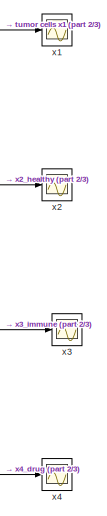
[diagram: root canvas - part 1/3, top right region]
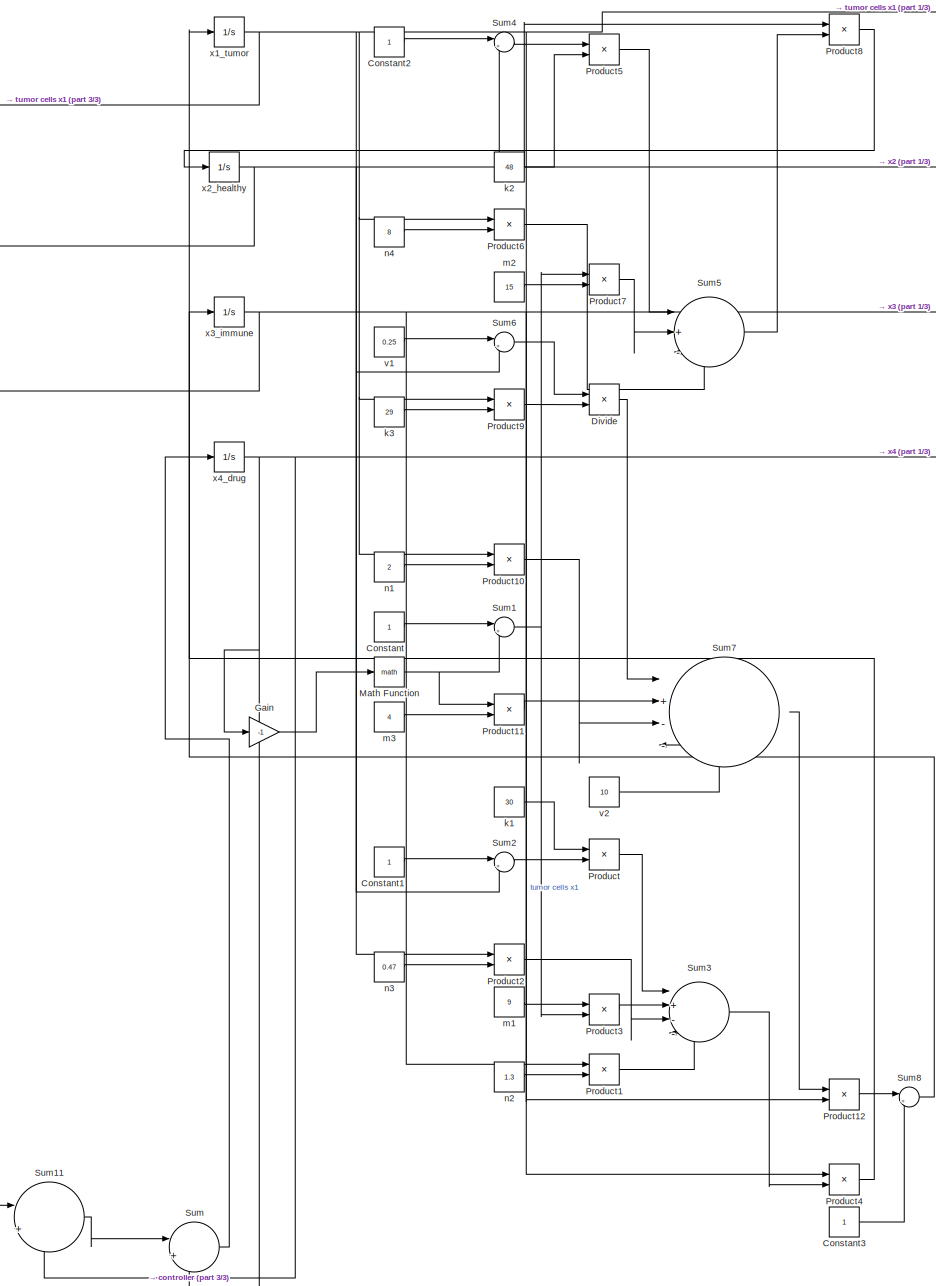
[diagram: root canvas - part 2/3, center side, full height]
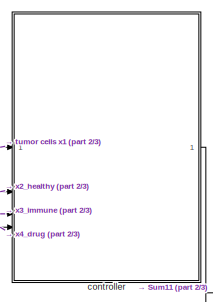
[diagram: root canvas - part 3/3, bottom left region]
MODEL slx_a7c8a405cb18
KIND model
CONFIG AbsTol = auto
CONFIG EnableMultiTasking = off
CONFIG FixedStep = auto
CONFIG MaxStep = auto
CONFIG MinStep = auto
CONFIG RelTol = 1e-3
CONFIG SampleTimeConstraint = Unconstrained
CONFIG SolverName = VariableStepAuto
CONFIG StartTime = 0.0
CONFIG StopTime = 2.5
BLOCK [Constant] Constant
BLOCK [Constant] Constant1
BLOCK [Constant] Constant2
BLOCK [Constant] Constant3
BLOCK [Product] Divide
  Inputs = /*
BLOCK [Gain] Gain
  Gain = -1
BLOCK [Math] Math Function
BLOCK [Product] Product
BLOCK [Product] Product1
BLOCK [Product] Product10
BLOCK [Product] Product11
BLOCK [Product] Product12
BLOCK [Product] Product2
BLOCK [Product] Product3
BLOCK [Product] Product4
BLOCK [Product] Product5
BLOCK [Product] Product6
BLOCK [Product] Product7
BLOCK [Product] Product8
BLOCK [Product] Product9
BLOCK [Sum] Sum
  Inputs = |+-
BLOCK [Sum] Sum1
  Inputs = |+-
BLOCK [Sum] Sum11
  Inputs = |++
BLOCK [Sum] Sum2
  Inputs = |+-
BLOCK [Sum] Sum3
  Inputs = |+---
BLOCK [Sum] Sum4
  Inputs = |+-
BLOCK [Sum] Sum5
  Inputs = |+--
BLOCK [Sum] Sum6
  Inputs = |++
BLOCK [Sum] Sum7
  Inputs = |+---
BLOCK [Sum] Sum8
  Inputs = |++
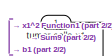
[diagram: controller - part 1/2, top right region]
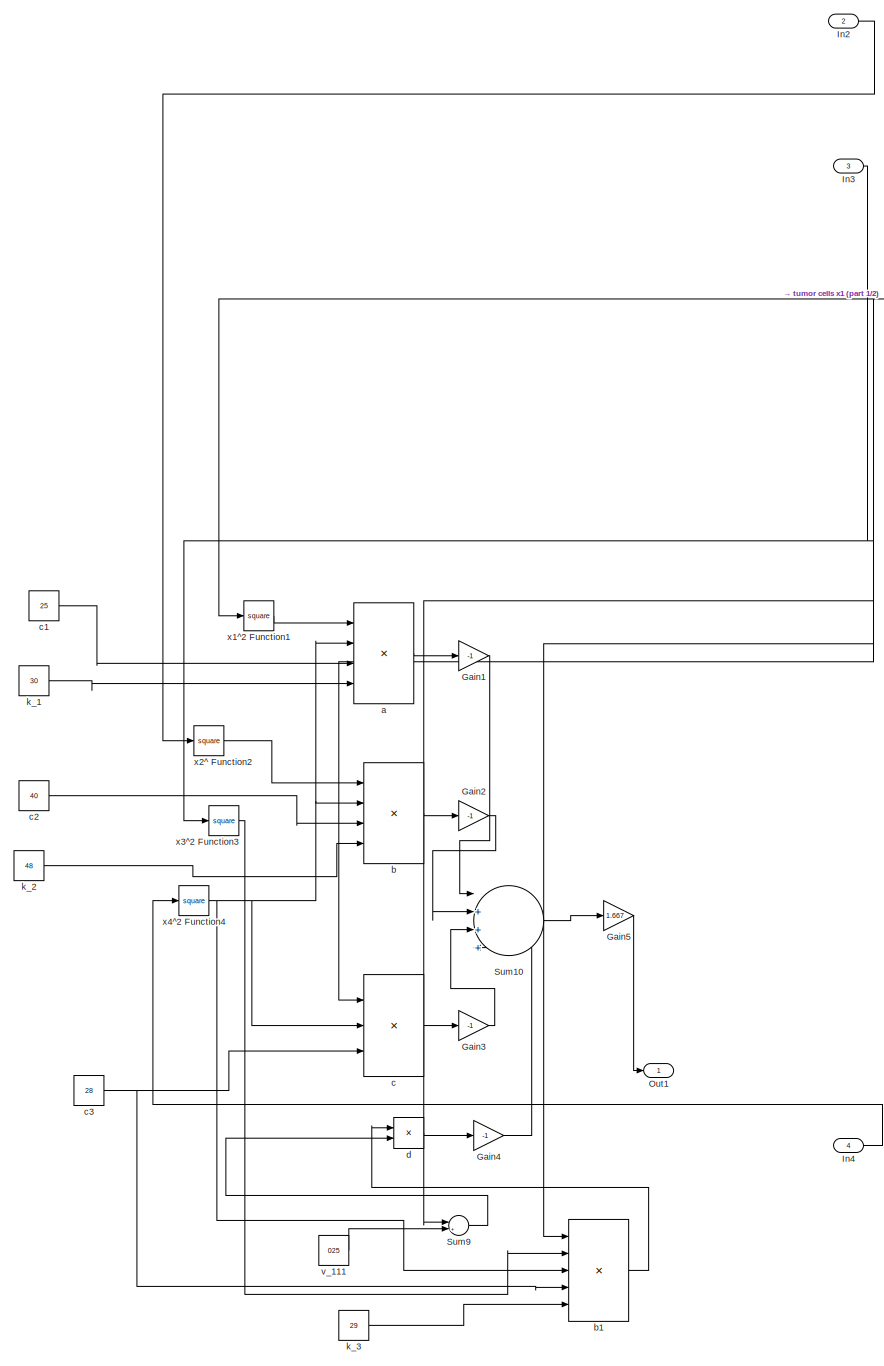
[diagram: controller - part 2/2, most of the canvas]
BLOCK [SubSystem] controller
BLOCK [Gain] controller/Gain1
  Gain = -1
BLOCK [Gain] controller/Gain2
  Gain = -1
BLOCK [Gain] controller/Gain3
  Gain = -1
BLOCK [Gain] controller/Gain4
  Gain = -1
BLOCK [Gain] controller/Gain5
  Gain = 1.667
BLOCK [Inport] controller/In2
  Port = 2
BLOCK [Inport] controller/In3
  Port = 3
BLOCK [Inport] controller/In4
  Port = 4
BLOCK [Outport] controller/Out1
BLOCK [Sum] controller/Sum10
  Inputs = |++++
BLOCK [Sum] controller/Sum9
  Inputs = |++
BLOCK [Product] controller/a
  Inputs = 4
BLOCK [Product] controller/b
  Inputs = 4
BLOCK [Product] controller/b1
  Inputs = 5
BLOCK [Product] controller/c
  Inputs = 3
BLOCK [Constant] controller/c1
  Value = 25
BLOCK [Constant] controller/c2
  Value = 40
BLOCK [Constant] controller/c3
  Value = 28
BLOCK [Product] controller/d
  Inputs = */
BLOCK [Constant] controller/k_1
  Value = 30
BLOCK [Constant] controller/k_2
  Value = 48
BLOCK [Constant] controller/k_3
  Value = 29
BLOCK [Inport] controller/tumor cells x1
BLOCK [Constant] controller/v_111
  Value = 025
BLOCK [Math] controller/x1^2 Function1
  Operator = square
BLOCK [Math] controller/x2^ Function2
  Operator = square
BLOCK [Math] controller/x3^2 Function3
  Operator = square
BLOCK [Math] controller/x4^2 Function4
  Operator = square
BLOCK [Constant] k1
  Value = 30
BLOCK [Constant] k2
  Value = 48
BLOCK [Constant] k3
  Value = 29
BLOCK [Constant] m1
  Value = 9
BLOCK [Constant] m2
  Value = 15
BLOCK [Constant] m3
  Value = 4
BLOCK [Constant] n1
  Value = 2
BLOCK [Constant] n2
  Value = 1.3
BLOCK [Constant] n3
  Value = 0.47
BLOCK [Constant] n4
  Value = 8
BLOCK [Constant] v1
  Value = 0.25
BLOCK [Constant] v2
  Value = 10
BLOCK [Scope] x1
  Floating = off
  NumInputPorts = 1
  ScopeSpecificationString = Simulink.scopes.TimeScopeBlockCfg('CurrentConfiguration', extmgr.ConfigurationSet(extmgr.Configuration('Core','General UI',true),extmgr.Configuration('Core','Source UI',true),extmgr.Configuration('Sources','WiredSimulink',true),extmgr.Configuration('Visuals','Time Domain',true,'SerializedDisplays',{struct('MinYLimReal','-0.08846','MaxYLimReal','2.78761','YLabelReal','','MinYLimMag','0.00000','MaxY...<+1460ch>
BLOCK [Integrator] x1_tumor
  InitialCondition = 2.5
BLOCK [Scope] x2
  Floating = off
  NumInputPorts = 1
  ScopeSpecificationString = Simulink.scopes.TimeScopeBlockCfg('CurrentConfiguration', extmgr.ConfigurationSet(extmgr.Configuration('Core','General UI',true),extmgr.Configuration('Core','Source UI',true),extmgr.Configuration('Sources','WiredSimulink',true,'DataLoggingVariableName','ScopeData1'),extmgr.Configuration('Visuals','Time Domain',true,'SerializedDisplays',{struct('MinYLimReal','0.16045','MaxYLimReal','1.05594','YLabe...<+1456ch>
BLOCK [Integrator] x2_healthy
  InitialCondition = 0.25
BLOCK [Scope] x3
  Floating = off
  NumInputPorts = 1
  ScopeSpecificationString = Simulink.scopes.TimeScopeBlockCfg('CurrentConfiguration', extmgr.ConfigurationSet(extmgr.Configuration('Core','General UI',true),extmgr.Configuration('Core','Source UI',true),extmgr.Configuration('Sources','WiredSimulink',true,'DataLoggingVariableName','ScopeData2'),extmgr.Configuration('Visuals','Time Domain',true,'SerializedDisplays',{struct('MinYLimReal','-0.77652','MaxYLimReal','22.48869','YLa...<+1461ch>
BLOCK [Integrator] x3_immune
  InitialCondition = 1.55
BLOCK [Scope] x4
  Floating = off
  NumInputPorts = 1
  ScopeSpecificationString = Simulink.scopes.TimeScopeBlockCfg('CurrentConfiguration', extmgr.ConfigurationSet(extmgr.Configuration('Core','General UI',true),extmgr.Configuration('Core','Source UI',true),extmgr.Configuration('Sources','WiredSimulink',true,'DataLoggingVariableName','ScopeData3'),extmgr.Configuration('Visuals','Time Domain',true,'SerializedDisplays',{struct('MinYLimReal','-0.24994','MaxYLimReal','2.24999','YLab...<+1503ch>
BLOCK [Integrator] x4_drug
  InitialCondition = 2
LINE Constant1:1 -> Sum2:1
LINE Constant2:1 -> Sum4:1
LINE Constant3:1 -> Sum8:2
LINE Constant:1 -> Sum1:1
LINE Divide:1 -> Sum7:1
LINE Gain:1 -> Math Function:1
NET Math Function:1 -> Product11:1, Sum1:2
LINE Product10:1 -> Sum7:3
LINE Product11:1 -> Sum7:2
LINE Product12:1 -> Sum8:1
LINE Product1:1 -> Sum3:4
LINE Product2:1 -> Sum3:3
LINE Product3:1 -> Sum3:2
LINE Product4:1 -> x1_tumor:1
LINE Product5:1 -> Sum5:1
LINE Product6:1 -> Sum5:3
LINE Product7:1 -> Sum5:2
LINE Product8:1 -> x2_healthy:1
LINE Product9:1 -> Divide:2
LINE Product:1 -> Sum3:1
LINE Sum11:1 -> Sum:1
NET Sum1:1 -> Product3:2, Product7:1
LINE Sum2:1 -> Product:2
LINE Sum3:1 -> Product4:2
LINE Sum4:1 -> Product5:1
LINE Sum5:1 -> Product8:2
LINE Sum6:1 -> Divide:1
LINE Sum7:1 -> Product12:1
LINE Sum8:1 -> x3_immune:1
LINE Sum:1 -> x4_drug:1
LINE controller/Gain1:1 -> controller/Sum10:1
LINE controller/Gain2:1 -> controller/Sum10:2
LINE controller/Gain3:1 -> controller/Sum10:3
LINE controller/Gain4:1 -> controller/Sum10:4
LINE controller/Gain5:1 -> controller/Out1:1
LINE controller/In2:1 -> controller/x2^ Function2:1
NET controller/In3:1 -> controller/c:1, controller/x3^2 Function3:1
LINE controller/In4:1 -> controller/x4^2 Function4:1
LINE controller/Sum10:1 -> controller/Gain5:1
LINE controller/Sum9:1 -> controller/d:2
LINE controller/a:1 -> controller/Gain1:1
LINE controller/b1:1 -> controller/d:1
LINE controller/b:1 -> controller/Gain2:1
LINE controller/c1:1 -> controller/a:3
LINE controller/c2:1 -> controller/b:3
NET controller/c3:1 -> controller/b1:4, controller/c:3
LINE controller/c:1 -> controller/Gain3:1
LINE controller/d:1 -> controller/Gain4:1
LINE controller/k_1:1 -> controller/a:4
LINE controller/k_2:1 -> controller/b:4
LINE controller/k_3:1 -> controller/b1:5
NET controller/tumor cells x1:1 -> controller/Sum9:1, controller/b1:1, controller/x1^2 Function1:1
LINE controller/v_111:1 -> controller/Sum9:2
LINE controller/x1^2 Function1:1 -> controller/a:1
LINE controller/x2^ Function2:1 -> controller/b:1
LINE controller/x3^2 Function3:1 -> controller/b1:2
NET controller/x4^2 Function4:1 -> controller/a:2, controller/b1:3, controller/b:2, controller/c:2
LINE controller:1 -> Sum11:1
LINE k1:1 -> Product:1
LINE k2:1 -> Product5:2
LINE k3:1 -> Product9:2
LINE m1:1 -> Product3:1
LINE m2:1 -> Product7:2
LINE m3:1 -> Product11:2
LINE n1:1 -> Product10:2
LINE n2:1 -> Product1:2
LINE n3:1 -> Product2:2
LINE n4:1 -> Product6:2
LINE v1:1 -> Sum6:1
LINE v2:1 -> Sum7:4
NET x1_tumor:1 -> Product10:1, Product4:1, Product6:1, Product9:1, Sum2:2, Sum6:2, controller:1, x1:1
NET x2_healthy:1 -> Product2:1, Product8:1, Sum4:2, controller:2, x2:1
NET x3_immune:1 -> Product12:2, Product1:1, controller:3, x3:1
NET x4_drug:1 -> Gain:1, Sum11:2, Sum:2, controller:4, x4:1
note: NET lines group one-source signal fan-out (src -> all destinations, sorted); 1:1 wires keep LINE
